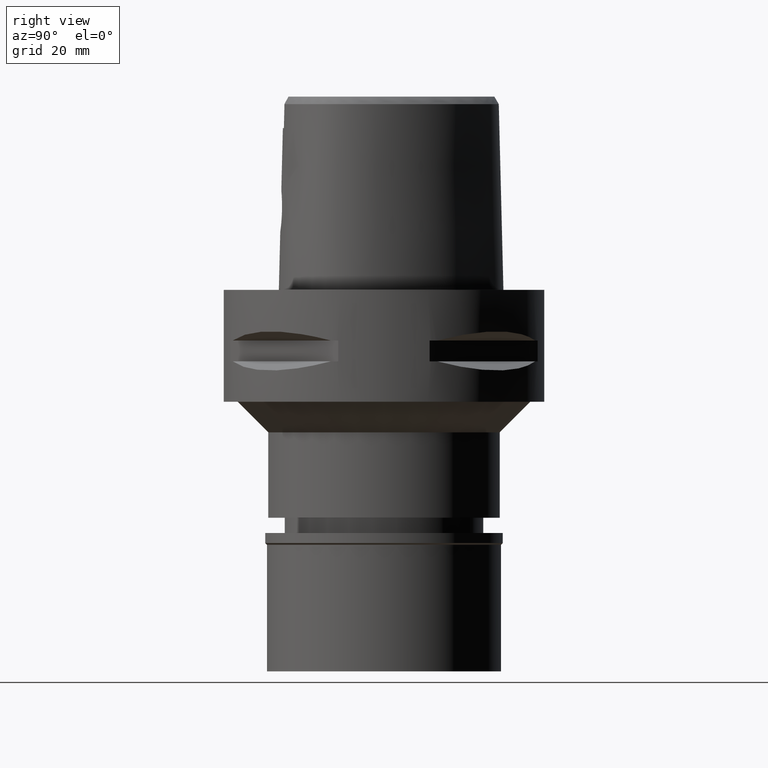
[diagram: clean part render]
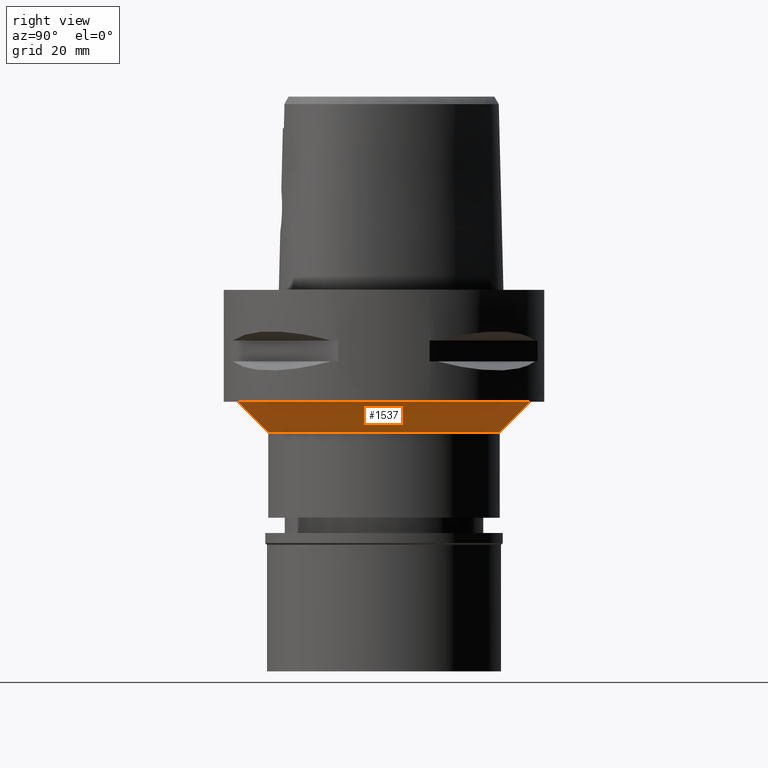
[diagram: same view with one face highlighted and labeled with its STEP entity id]
A machine part, right view. The second image highlights one B-rep face of the part: STEP entity #1537.
In plain terms, the highlighted conical surface has half-angle 45 deg.
Its self-contained STEP definition (entity closure, byte-faithful):
#154 = LINE ( 'NONE', #2340, #873 ) ;
#670 = VECTOR ( 'NONE', #3798, 1000.000000000000114 ) ;
#738 = ORIENTED_EDGE ( 'NONE', *, *, #4523, .F. ) ;
#761 = CARTESIAN_POINT ( 'NONE',  ( 0.0000000000000000000, -22.75000000000000000, -28.00000000000000000 ) ) ;
#841 = EDGE_CURVE ( 'NONE', #1820, #2860, #154, .T. ) ;
#873 = VECTOR ( 'NONE', #1992, 1000.000000000000114 ) ;
#1103 = CARTESIAN_POINT ( 'NONE',  ( 0.0000000000000000000, 0.0000000000000000000, -25.00000000000000000 ) ) ;
#1201 = DIRECTION ( 'NONE',  ( 0.0000000000000000000, 0.0000000000000000000, -1.000000000000000000 ) ) ;
#1203 = DIRECTION ( 'NONE',  ( 0.0000000000000000000, 0.0000000000000000000, -1.000000000000000000 ) ) ;
#1388 = ORIENTED_EDGE ( 'NONE', *, *, #841, .T. ) ;
#1537 = ADVANCED_FACE ( 'NONE', ( #4106 ), #2836, .T. ) ;
#1559 = LINE ( 'NONE', #4539, #670 ) ;
#1590 = CIRCLE ( 'NONE', #4318, 28.75000000000000000 ) ;
#1820 = VERTEX_POINT ( 'NONE', #3360 ) ;
#1903 = DIRECTION ( 'NONE',  ( 0.0000000000000000000, 1.000000000000000000, 0.0000000000000000000 ) ) ;
#1926 = CARTESIAN_POINT ( 'NONE',  ( 0.0000000000000000000, 0.0000000000000000000, -28.00000000000000000 ) ) ;
#1949 = EDGE_CURVE ( 'NONE', #4287, #1820, #1590, .T. ) ;
#1992 = DIRECTION ( 'NONE',  ( 0.0000000000000000000, 0.7071067811865474617, -0.7071067811865474617 ) ) ;
#2114 = ORIENTED_EDGE ( 'NONE', *, *, #1949, .T. ) ;
#2136 = AXIS2_PLACEMENT_3D ( 'NONE', #1103, #4126, #4546 ) ;
#2340 = CARTESIAN_POINT ( 'NONE',  ( 0.0000000000000000000, -28.75000000000000000, -22.00000000000000000 ) ) ;
#2836 = CONICAL_SURFACE ( 'NONE', #2136, 25.75000000000000000, 0.7853981633972997312 ) ;
#2860 = VERTEX_POINT ( 'NONE', #761 ) ;
#3040 = CARTESIAN_POINT ( 'NONE',  ( 0.0000000000000000000, 0.0000000000000000000, -22.00000000000000000 ) ) ;
#3201 = ORIENTED_EDGE ( 'NONE', *, *, #4298, .F. ) ;
#3244 = AXIS2_PLACEMENT_3D ( 'NONE', #1926, #1203, #1903 ) ;
#3351 = VERTEX_POINT ( 'NONE', #4266 ) ;
#3360 = CARTESIAN_POINT ( 'NONE',  ( 0.0000000000000000000, -28.75000000000000000, -22.00000000000000000 ) ) ;
#3450 = DIRECTION ( 'NONE',  ( 0.0000000000000000000, 1.000000000000000000, 0.0000000000000000000 ) ) ;
#3798 = DIRECTION ( 'NONE',  ( 0.0000000000000000000, -0.7071067811865474617, -0.7071067811865474617 ) ) ;
#3823 = CARTESIAN_POINT ( 'NONE',  ( 0.0000000000000000000, 28.75000000000000000, -22.00000000000000000 ) ) ;
#4027 = CIRCLE ( 'NONE', #3244, 22.75000000000000000 ) ;
#4106 = FACE_OUTER_BOUND ( 'NONE', #4407, .T. ) ;
#4126 = DIRECTION ( 'NONE',  ( 0.0000000000000000000, 0.0000000000000000000, 1.000000000000000000 ) ) ;
#4266 = CARTESIAN_POINT ( 'NONE',  ( 0.0000000000000000000, 22.75000000000000000, -28.00000000000000000 ) ) ;
#4287 = VERTEX_POINT ( 'NONE', #3823 ) ;
#4298 = EDGE_CURVE ( 'NONE', #3351, #2860, #4027, .T. ) ;
#4318 = AXIS2_PLACEMENT_3D ( 'NONE', #3040, #1201, #3450 ) ;
#4407 = EDGE_LOOP ( 'NONE', ( #2114, #1388, #3201, #738 ) ) ;
#4523 = EDGE_CURVE ( 'NONE', #4287, #3351, #1559, .T. ) ;
#4539 = CARTESIAN_POINT ( 'NONE',  ( 0.0000000000000000000, 28.75000000000000000, -22.00000000000000000 ) ) ;
#4546 = DIRECTION ( 'NONE',  ( 0.0000000000000000000, 1.000000000000000000, 0.0000000000000000000 ) ) ;